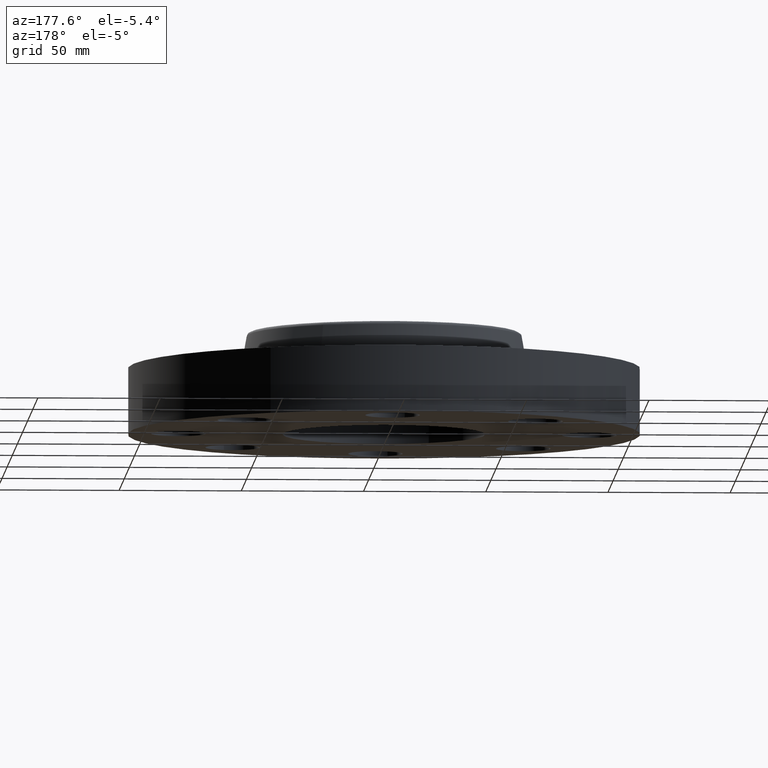
[diagram: clean part render]
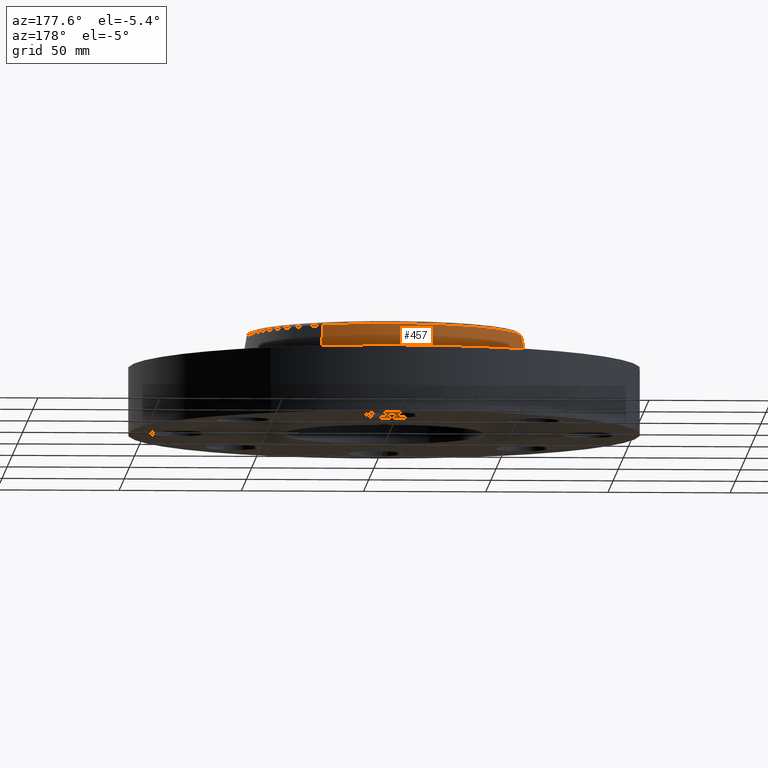
[diagram: same view with one face highlighted and labeled with its STEP entity id]
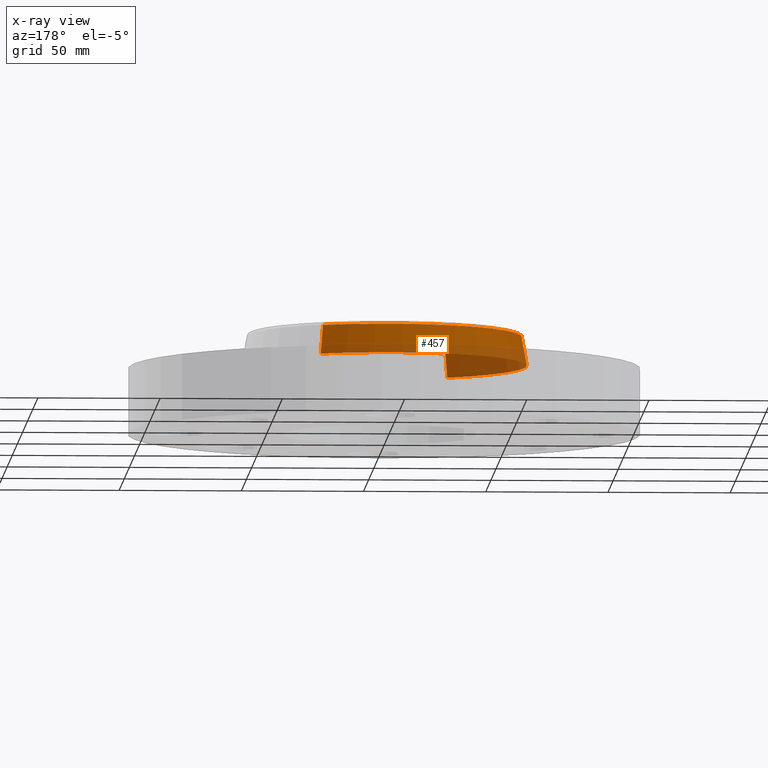
[diagram: x-ray of the same camera — body ghosted, the highlighted face saturated]
A machine part, auxiliary view. The second image highlights one B-rep face of the part: STEP entity #457.
The next image is the same camera in x-ray: the body ghosted, the highlighted face saturated — about 44% of this face is hidden behind the body in this view.
In plain terms, the highlighted conical surface has half-angle 10 deg.
Its self-contained STEP definition (entity closure, byte-faithful):
#405=AXIS2_PLACEMENT_3D('Circle Axis2P3D',#403,#404,$) ;
#418=AXIS2_PLACEMENT_3D('Cone Axis2P3D',#415,#416,#417) ;
#448=AXIS2_PLACEMENT_3D('Circle Axis2P3D',#446,#447,$) ;
#376=CARTESIAN_POINT('Vertex',(1.10328162249,2.01954346356,1.10958110934)) ;
#383=CARTESIAN_POINT('Vertex',(-1.10328162249,-2.01954346356,1.10958110934)) ;
#403=CARTESIAN_POINT('Axis2P3D Location',(0.,0.,1.10958110934)) ;
#415=CARTESIAN_POINT('Axis2P3D Location',(0.,0.,1.58041889067)) ;
#420=CARTESIAN_POINT('Line Origine',(1.08338033174,1.98311439519,1.34500000001)) ;
#424=CARTESIAN_POINT('Vertex',(1.06347904098,1.94668532681,1.58041889067)) ;
#431=CARTESIAN_POINT('Vertex',(-1.06347904098,-1.94668532681,1.58041889067)) ;
#434=CARTESIAN_POINT('Line Origine',(-1.08338033174,-1.98311439519,1.34500000001)) ;
#446=CARTESIAN_POINT('Axis2P3D Location',(0.,0.,1.58041889067)) ;
#404=DIRECTION('Axis2P3D Direction',(0.,0.,-0.0393700787402)) ;
#416=DIRECTION('Axis2P3D Direction',(0.,0.,-0.0393700787402)) ;
#417=DIRECTION('Axis2P3D XDirection',(-0.0188750212049,-0.0345504945626,0.)) ;
#421=DIRECTION('Vector Direction',(0.00327761303565,0.00599963041829,-0.03877195878)) ;
#435=DIRECTION('Vector Direction',(-0.00327761303565,-0.00599963041829,-0.03877195878)) ;
#447=DIRECTION('Axis2P3D Direction',(0.,0.,-0.0393700787402)) ;
#422=VECTOR('Line Direction',#421,0.0393700787402) ;
#436=VECTOR('Line Direction',#435,0.0393700787402) ;
#452=ORIENTED_EDGE('',*,*,#407,.F.) ;
#453=ORIENTED_EDGE('',*,*,#438,.T.) ;
#454=ORIENTED_EDGE('',*,*,#450,.T.) ;
#455=ORIENTED_EDGE('',*,*,#426,.F.) ;
#457=ADVANCED_FACE('PartBody',(#456),#419,.T.) ;
#406=CIRCLE('generated circle',#405,2.3012575127) ;
#449=CIRCLE('generated circle',#448,2.21823610832) ;
#419=CONICAL_SURFACE('Cone',#418,2.21823610832,0.174532925199) ;
#407=EDGE_CURVE('',#384,#377,#406,.T.) ;
#426=EDGE_CURVE('',#377,#425,#423,.F.) ;
#438=EDGE_CURVE('',#384,#432,#437,.F.) ;
#450=EDGE_CURVE('',#432,#425,#449,.T.) ;
#451=EDGE_LOOP('',(#452,#453,#454,#455)) ;
#456=FACE_OUTER_BOUND('',#451,.T.) ;
#423=LINE('Line',#420,#422) ;
#437=LINE('Line',#434,#436) ;
#377=VERTEX_POINT('',#376) ;
#384=VERTEX_POINT('',#383) ;
#425=VERTEX_POINT('',#424) ;
#432=VERTEX_POINT('',#431) ;